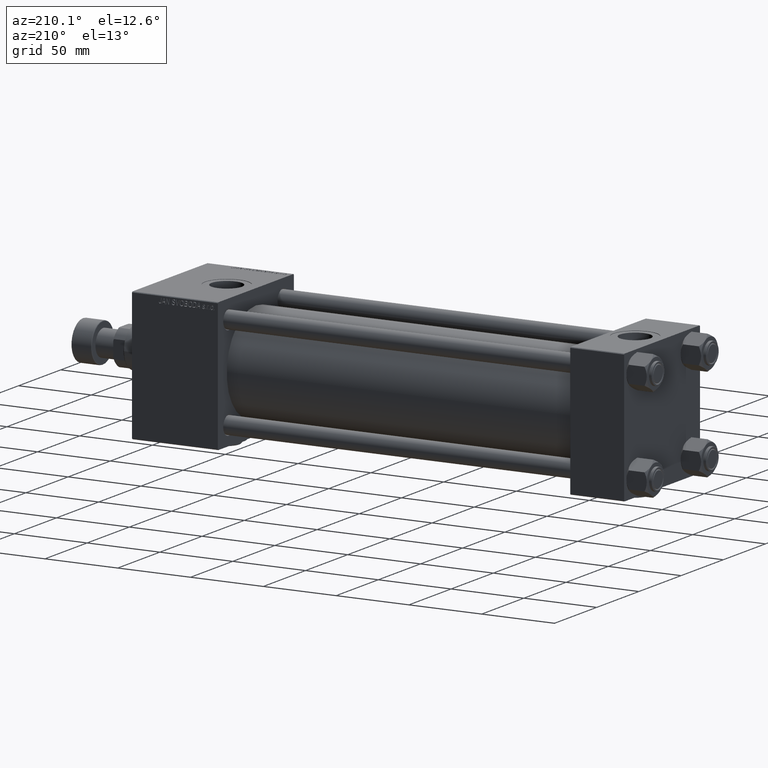
[diagram: clean part render]
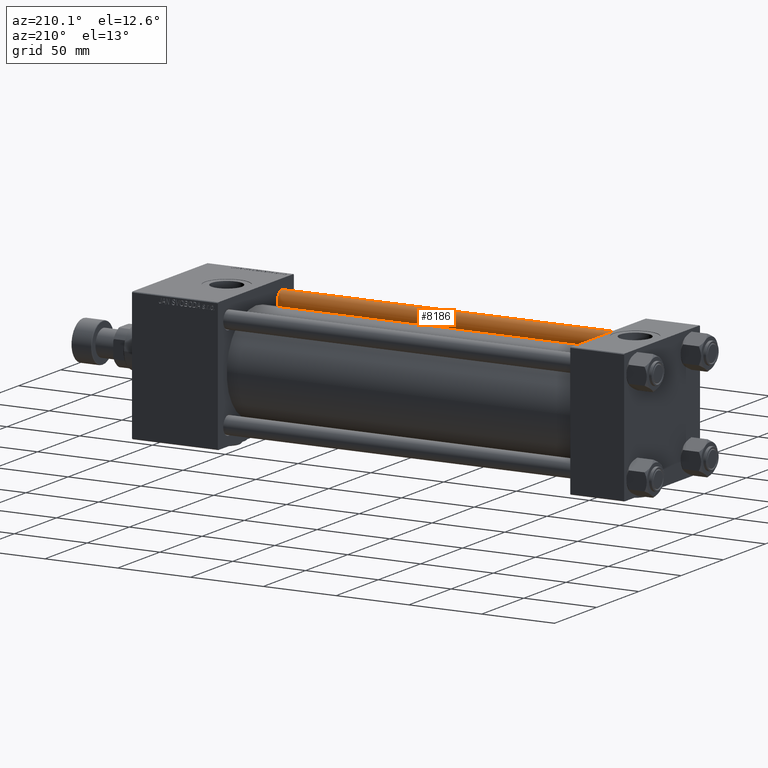
[diagram: same view with one face highlighted and labeled with its STEP entity id]
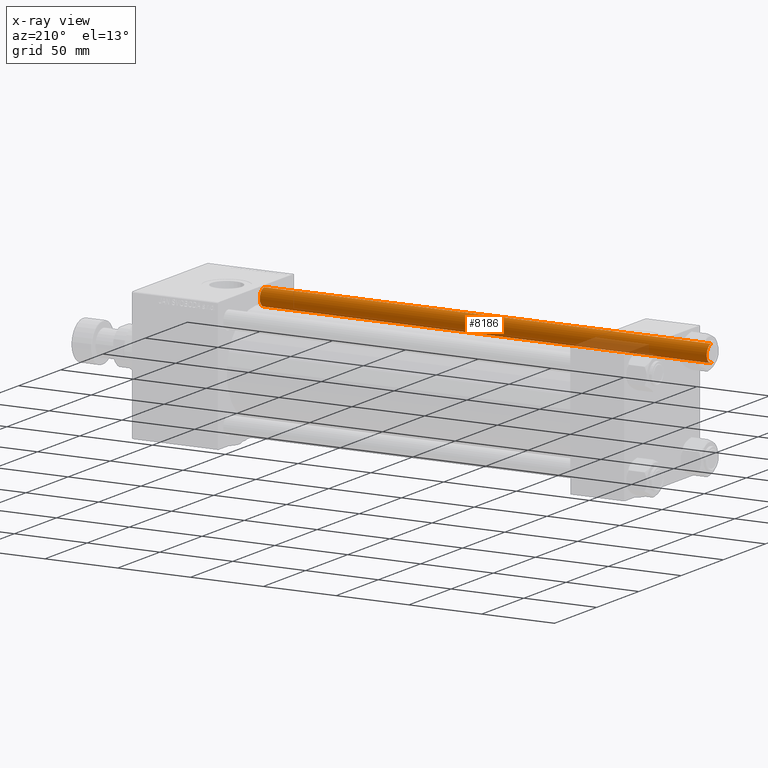
[diagram: x-ray of the same camera — body ghosted, the highlighted face saturated]
A machine part, auxiliary view. The second image highlights one B-rep face of the part: STEP entity #8186.
The next image is the same camera in x-ray: the body ghosted, the highlighted face saturated — about 8% of this face is hidden behind the body in this view.
In plain terms, the highlighted cylindrical surface (edge-blend (fillet) strip) has radius 6 mm, axis along (1, 0, -0).
Its self-contained STEP definition (entity closure, byte-faithful):
#418 = EDGE_CURVE ( 'NONE', #16432, #20371, #40370, .T. ) ;
#3274 = CARTESIAN_POINT ( 'NONE',  ( 6.000000000000000888, 7.347880794884120722E-16, 308.0000000000000000 ) ) ;
#4070 = ORIENTED_EDGE ( 'NONE', *, *, #34052, .T. ) ;
#4710 = VECTOR ( 'NONE', #14758, 1000.000000000000000 ) ;
#6060 = EDGE_CURVE ( 'NONE', #25706, #16432, #12777, .T. ) ;
#8186 = ADVANCED_FACE ( 'NONE', ( #25872 ), #8797, .T. ) ;
#8797 = CYLINDRICAL_SURFACE ( 'NONE', #42691, 6.000000000000000888 ) ;
#9060 = DIRECTION ( 'NONE',  ( -1.000000000000000000, 0.000000000000000000, 0.000000000000000000 ) ) ;
#9577 = CARTESIAN_POINT ( 'NONE',  ( 0.000000000000000000, 0.000000000000000000, 308.0000000000000000 ) ) ;
#12777 = CIRCLE ( 'NONE', #32415, 6.000000000000000888 ) ;
#13498 = CARTESIAN_POINT ( 'NONE',  ( -6.000000000000000888, 0.000000000000000000, 307.4999999999999432 ) ) ;
#14758 = DIRECTION ( 'NONE',  ( -0.000000000000000000, -0.000000000000000000, -1.000000000000000000 ) ) ;
#15943 = DIRECTION ( 'NONE',  ( -0.000000000000000000, -0.000000000000000000, 1.000000000000000000 ) ) ;
#16432 = VERTEX_POINT ( 'NONE', #13498 ) ;
#17458 = DIRECTION ( 'NONE',  ( 1.000000000000000000, 0.000000000000000000, 0.000000000000000000 ) ) ;
#19362 = ORIENTED_EDGE ( 'NONE', *, *, #39313, .F. ) ;
#19990 = DIRECTION ( 'NONE',  ( 0.000000000000000000, 0.000000000000000000, -1.000000000000000000 ) ) ;
#20337 = DIRECTION ( 'NONE',  ( -0.000000000000000000, -0.000000000000000000, -1.000000000000000000 ) ) ;
#20371 = VERTEX_POINT ( 'NONE', #40807 ) ;
#20436 = ORIENTED_EDGE ( 'NONE', *, *, #6060, .T. ) ;
#20794 = AXIS2_PLACEMENT_3D ( 'NONE', #49476, #15943, #17458 ) ;
#25706 = VERTEX_POINT ( 'NONE', #51733 ) ;
#25872 = FACE_OUTER_BOUND ( 'NONE', #29755, .T. ) ;
#26963 = ORIENTED_EDGE ( 'NONE', *, *, #418, .T. ) ;
#28087 = CARTESIAN_POINT ( 'NONE',  ( -6.000000000000000888, 0.000000000000000000, 308.0000000000000000 ) ) ;
#28519 = DIRECTION ( 'NONE',  ( 1.000000000000000000, 0.000000000000000000, 0.000000000000000000 ) ) ;
#29473 = CARTESIAN_POINT ( 'NONE',  ( 6.000000000000000888, 7.347880794884120722E-16, 0.5000000000000559552 ) ) ;
#29755 = EDGE_LOOP ( 'NONE', ( #19362, #20436, #26963, #4070 ) ) ;
#32415 = AXIS2_PLACEMENT_3D ( 'NONE', #40000, #19990, #28519 ) ;
#34052 = EDGE_CURVE ( 'NONE', #20371, #49829, #43810, .T. ) ;
#39313 = EDGE_CURVE ( 'NONE', #25706, #49829, #51312, .T. ) ;
#40000 = CARTESIAN_POINT ( 'NONE',  ( 0.000000000000000000, 0.000000000000000000, 307.4999999999999432 ) ) ;
#40370 = LINE ( 'NONE', #28087, #44991 ) ;
#40807 = CARTESIAN_POINT ( 'NONE',  ( -6.000000000000000888, 0.000000000000000000, 0.5000000000000559552 ) ) ;
#42691 = AXIS2_PLACEMENT_3D ( 'NONE', #9577, #45363, #9060 ) ;
#43810 = CIRCLE ( 'NONE', #20794, 6.000000000000000888 ) ;
#44991 = VECTOR ( 'NONE', #20337, 1000.000000000000000 ) ;
#45363 = DIRECTION ( 'NONE',  ( -0.000000000000000000, -0.000000000000000000, -1.000000000000000000 ) ) ;
#49476 = CARTESIAN_POINT ( 'NONE',  ( 0.000000000000000000, 0.000000000000000000, 0.5000000000000559552 ) ) ;
#49829 = VERTEX_POINT ( 'NONE', #29473 ) ;
#51312 = LINE ( 'NONE', #3274, #4710 ) ;
#51733 = CARTESIAN_POINT ( 'NONE',  ( 6.000000000000000888, 7.347880794884120722E-16, 307.4999999999999432 ) ) ;